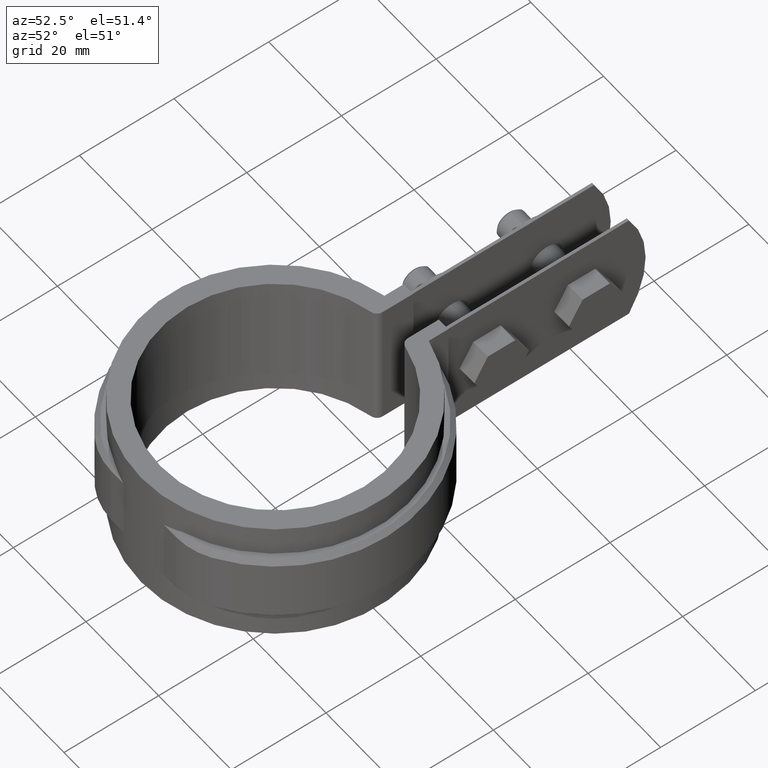
[diagram: clean part render]
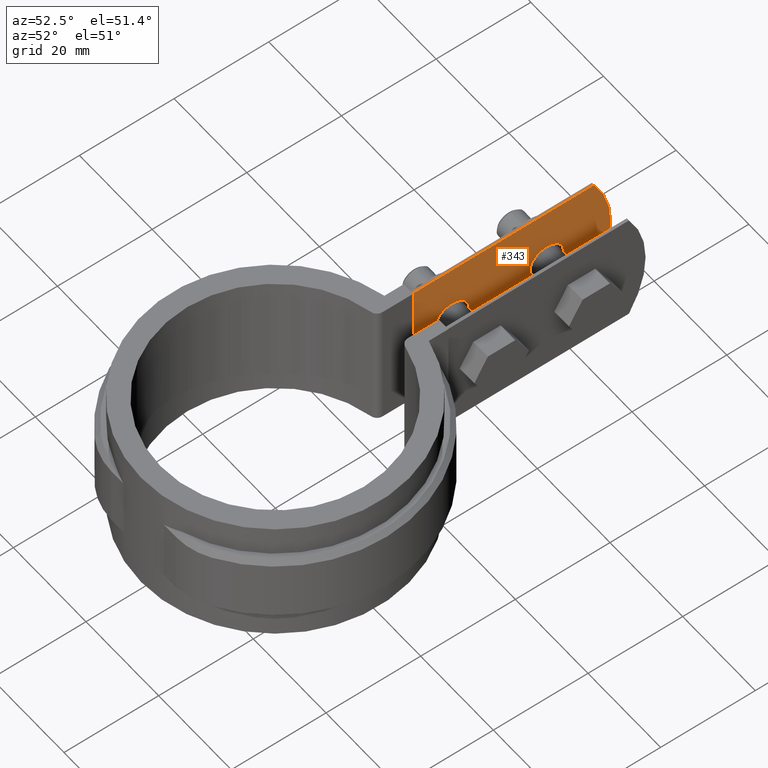
[diagram: same view with one face highlighted and labeled with its STEP entity id]
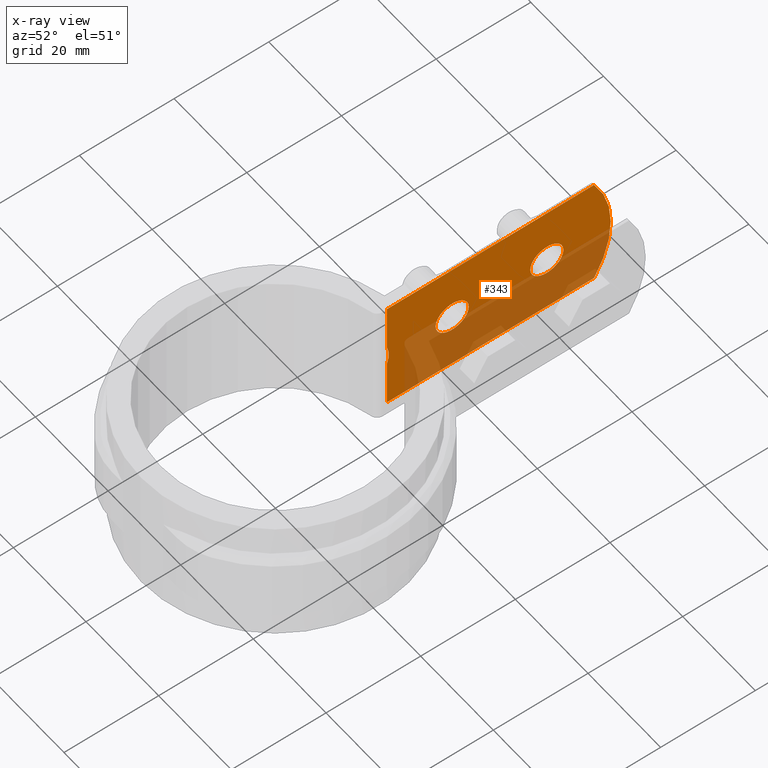
[diagram: x-ray of the same camera — body ghosted, the highlighted face saturated]
A machine part, auxiliary view. The second image highlights one B-rep face of the part: STEP entity #343.
The next image is the same camera in x-ray: the body ghosted, the highlighted face saturated — about 43% of this face is hidden behind the body in this view.
In plain terms, the highlighted planar face has unit normal (1, -0, 0).
Its self-contained STEP definition (entity closure, byte-faithful):
#343 = ADVANCED_FACE( '', ( #589, #590, #591 ), #592, .T. );
#589 = FACE_BOUND( '', #1284, .T. );
#590 = FACE_BOUND( '', #1285, .T. );
#591 = FACE_OUTER_BOUND( '', #1286, .T. );
#592 = PLANE( '', #1287 );
#1284 = EDGE_LOOP( '', ( #2589 ) );
#1285 = EDGE_LOOP( '', ( #2590 ) );
#1286 = EDGE_LOOP( '', ( #2591, #2592, #2593, #2594, #2595, #2596 ) );
#1287 = AXIS2_PLACEMENT_3D( '', #2597, #2598, #2599 );
#2589 = ORIENTED_EDGE( '', *, *, #5300, .T. );
#2590 = ORIENTED_EDGE( '', *, *, #5302, .T. );
#2591 = ORIENTED_EDGE( '', *, *, #5282, .T. );
#2592 = ORIENTED_EDGE( '', *, *, #5233, .F. );
#2593 = ORIENTED_EDGE( '', *, *, #5303, .T. );
#2594 = ORIENTED_EDGE( '', *, *, #5304, .F. );
#2595 = ORIENTED_EDGE( '', *, *, #5305, .T. );
#2596 = ORIENTED_EDGE( '', *, *, #5196, .T. );
#2597 = CARTESIAN_POINT( '', ( -4.50000000000000, 74.3045271556075, 0.000000000000000 ) );
#2598 = DIRECTION( '', ( 1.00000000000000, -6.12303176911189E-017, 0.000000000000000 ) );
#2599 = DIRECTION( '', ( -6.12303176911189E-017, -1.00000000000000, 0.000000000000000 ) );
#5196 = EDGE_CURVE( '', #5783, #5800, #5802, .T. );
#5233 = EDGE_CURVE( '', #5868, #5870, #5871, .T. );
#5282 = EDGE_CURVE( '', #5800, #5870, #5953, .T. );
#5300 = EDGE_CURVE( '', #5974, #5974, #5975, .F. );
#5302 = EDGE_CURVE( '', #5978, #5978, #5979, .F. );
#5303 = EDGE_CURVE( '', #5868, #5980, #5981, .T. );
#5304 = EDGE_CURVE( '', #5982, #5980, #5983, .T. );
#5305 = EDGE_CURVE( '', #5982, #5783, #5984, .T. );
#5783 = VERTEX_POINT( '', #6900 );
#5800 = VERTEX_POINT( '', #6922 );
#5802 = LINE( '', #6924, #6925 );
#5868 = VERTEX_POINT( '', #7496 );
#5870 = VERTEX_POINT( '', #7513 );
#5871 = B_SPLINE_CURVE_WITH_KNOTS( '', 3, ( #7514, #7515, #7516, #7517, #7518 ), .UNSPECIFIED., .F., .F., ( 4, 1, 4 ), ( 4.21104123793370E-016, 0.00220062331170388, 0.00440124662340736 ), .UNSPECIFIED. );
#5953 = LINE( '', #7782, #7783 );
#5974 = VERTEX_POINT( '', #7852 );
#5975 = CIRCLE( '', #7853, 3.50000000000000 );
#5978 = VERTEX_POINT( '', #7856 );
#5979 = CIRCLE( '', #7857, 3.50000000000000 );
#5980 = VERTEX_POINT( '', #7858 );
#5981 = LINE( '', #7859, #7860 );
#5982 = VERTEX_POINT( '', #7861 );
#5983 = LINE( '', #7862, #7863 );
#5984 = CIRCLE( '', #7864, 24.0000000000000 );
#6900 = CARTESIAN_POINT( '', ( -4.49999999999999, 70.7923284041554, 0.000000000000000 ) );
#6922 = CARTESIAN_POINT( '', ( -4.50000000000000, 27.0294284068310, 0.000000000000000 ) );
#6924 = CARTESIAN_POINT( '', ( -4.50000000000000, 74.3045271556075, 0.000000000000000 ) );
#6925 = VECTOR( '', #10419, 1000.00000000000 );
#7496 = CARTESIAN_POINT( '', ( -4.49999999999999, 27.0294284068311, -14.6626543710787 ) );
#7513 = CARTESIAN_POINT( '', ( -4.49999999999999, 27.0294284068311, -10.3373456289213 ) );
#7514 = CARTESIAN_POINT( '', ( -4.50000000000002, 27.0294284068313, -14.6626543710783 ) );
#7515 = CARTESIAN_POINT( '', ( -4.50000000000002, 27.2945721383805, -13.9745045654910 ) );
#7516 = CARTESIAN_POINT( '', ( -4.50000000000002, 27.5721755326816, -12.5000000000000 ) );
#7517 = CARTESIAN_POINT( '', ( -4.50000000000002, 27.2945721383805, -11.0254954345091 ) );
#7518 = CARTESIAN_POINT( '', ( -4.50000000000002, 27.0294284068313, -10.3373456289217 ) );
#7782 = CARTESIAN_POINT( '', ( -4.50000000000000, 27.0294284068310, 0.000000000000000 ) );
#7783 = VECTOR( '', #10472, 1000.00000000000 );
#7852 = CARTESIAN_POINT( '', ( -4.49999999999999, 44.3045271556075, -12.5000000000000 ) );
#7853 = AXIS2_PLACEMENT_3D( '', #10484, #10485, #10486 );
#7856 = CARTESIAN_POINT( '', ( -4.49999999999999, 64.3045271556075, -12.5000000000000 ) );
#7857 = AXIS2_PLACEMENT_3D( '', #10490, #10491, #10492 );
#7858 = CARTESIAN_POINT( '', ( -4.50000000000000, 27.0294284068310, -25.0000000000000 ) );
#7859 = CARTESIAN_POINT( '', ( -4.50000000000000, 27.0294284068310, 0.000000000000000 ) );
#7860 = VECTOR( '', #10493, 1000.00000000000 );
#7861 = CARTESIAN_POINT( '', ( -4.49999999999999, 70.7923284041554, -25.0000000000000 ) );
#7862 = CARTESIAN_POINT( '', ( -4.50000000000000, 74.3045271556075, -25.0000000000000 ) );
#7863 = VECTOR( '', #10494, 1000.00000000000 );
#7864 = AXIS2_PLACEMENT_3D( '', #10495, #10496, #10497 );
#10419 = DIRECTION( '', ( -6.12303176911189E-017, -1.00000000000000, 0.000000000000000 ) );
#10472 = DIRECTION( '', ( 0.000000000000000, 0.000000000000000, -1.00000000000000 ) );
#10484 = CARTESIAN_POINT( '', ( -4.49999999999999, 40.8045271556075, -12.5000000000000 ) );
#10485 = DIRECTION( '', ( 1.00000000000000, -6.12303176911189E-017, 0.000000000000000 ) );
#10486 = DIRECTION( '', ( 6.12303176911189E-017, 1.00000000000000, 0.000000000000000 ) );
#10490 = CARTESIAN_POINT( '', ( -4.49999999999999, 60.8045271556075, -12.5000000000000 ) );
#10491 = DIRECTION( '', ( 1.00000000000000, -6.12303176911189E-017, 0.000000000000000 ) );
#10492 = DIRECTION( '', ( 6.12303176911189E-017, 1.00000000000000, 0.000000000000000 ) );
#10493 = DIRECTION( '', ( 0.000000000000000, 0.000000000000000, -1.00000000000000 ) );
#10494 = DIRECTION( '', ( -6.12303176911189E-017, -1.00000000000000, 0.000000000000000 ) );
#10495 = CARTESIAN_POINT( '', ( -4.49999999999999, 50.3045271556075, -12.5000000000000 ) );
#10496 = DIRECTION( '', ( 1.00000000000000, -6.12303176911189E-017, 0.000000000000000 ) );
#10497 = DIRECTION( '', ( 6.12303176911189E-017, 1.00000000000000, 0.000000000000000 ) );